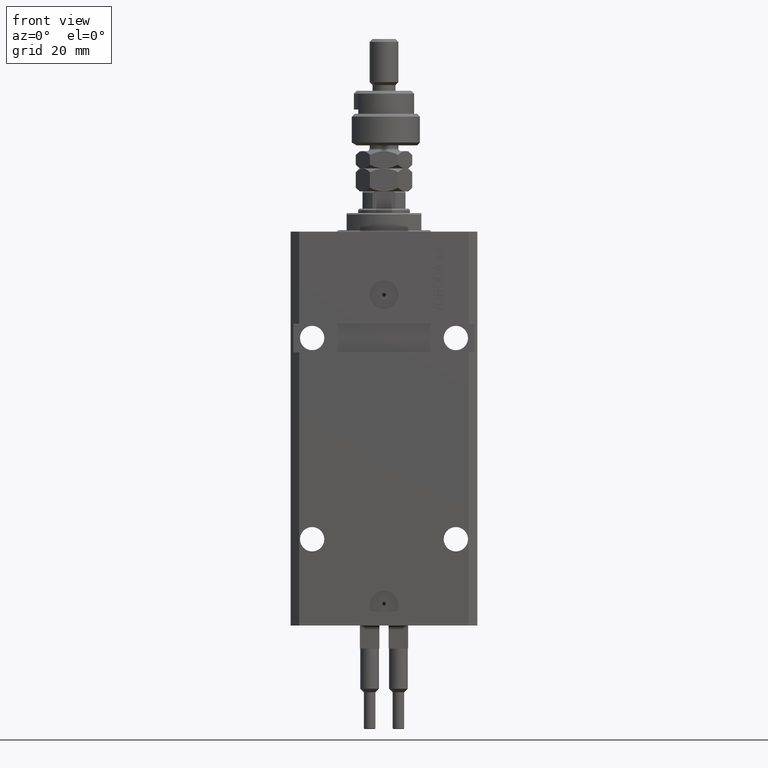
[diagram: clean part render]
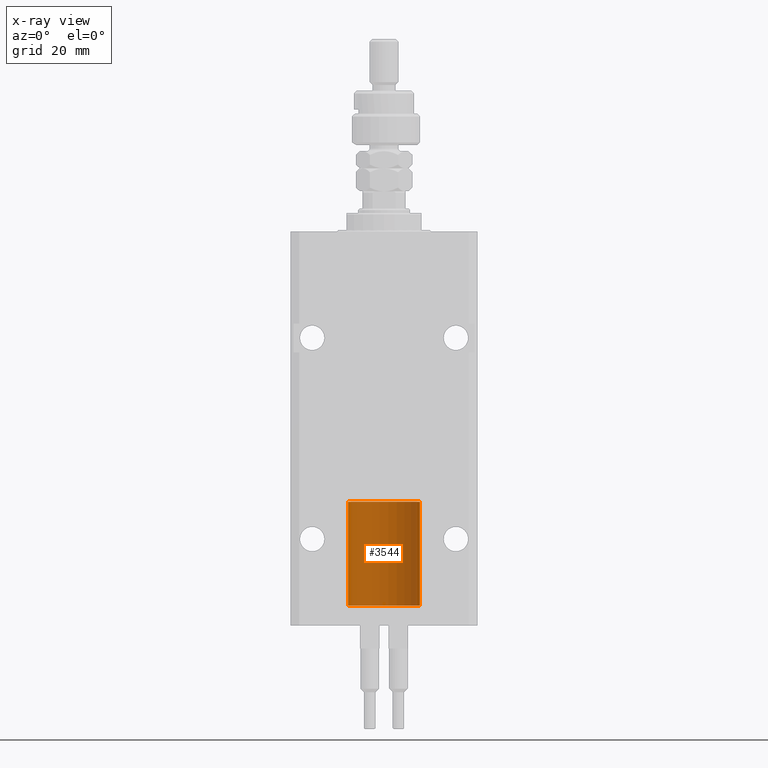
[diagram: x-ray — body ghosted, one internal face saturated and labeled with its STEP entity id]
A machine part, front view, then the same camera in x-ray: the body is ghosted and one INTERNAL B-rep face — a face not visible from any outside direction — is saturated and labeled: STEP entity #3544.
In plain terms, the highlighted cylindrical surface (edge-blend (fillet) strip) has radius 12.5 mm, axis along (-0, -0, -1).
Its self-contained STEP definition (entity closure, byte-faithful):
#2210 = DIRECTION ( 'NONE',  ( 1.000000000000000000, 0.000000000000000000, 0.000000000000000000 ) ) ;
#3544 = ADVANCED_FACE ( 'NONE', ( #48759 ), #12816, .T. ) ;
#4843 = LINE ( 'NONE', #5362, #41186 ) ;
#4847 = CARTESIAN_POINT ( 'NONE',  ( -12.50000000000000000, 0.000000000000000000, 36.10000000000000142 ) ) ;
#5076 = VERTEX_POINT ( 'NONE', #31558 ) ;
#5362 = CARTESIAN_POINT ( 'NONE',  ( 12.50000000000000000, 1.530808498934191521E-15, 36.10000000000000142 ) ) ;
#5627 = CARTESIAN_POINT ( 'NONE',  ( 0.000000000000000000, 0.000000000000000000, 36.10000000000000142 ) ) ;
#7104 = AXIS2_PLACEMENT_3D ( 'NONE', #5627, #29747, #2210 ) ;
#10031 = CARTESIAN_POINT ( 'NONE',  ( 12.50000000000000000, 1.530808498934191521E-15, 0.000000000000000000 ) ) ;
#12816 = CYLINDRICAL_SURFACE ( 'NONE', #25136, 12.50000000000000000 ) ;
#12958 = CIRCLE ( 'NONE', #19651, 12.50000000000000000 ) ;
#13467 = ORIENTED_EDGE ( 'NONE', *, *, #29627, .T. ) ;
#15784 = VERTEX_POINT ( 'NONE', #40707 ) ;
#16367 = DIRECTION ( 'NONE',  ( -0.000000000000000000, -0.000000000000000000, -1.000000000000000000 ) ) ;
#17528 = DIRECTION ( 'NONE',  ( -1.000000000000000000, 0.000000000000000000, 0.000000000000000000 ) ) ;
#17768 = EDGE_CURVE ( 'NONE', #27921, #5076, #12958, .T. ) ;
#19006 = ORIENTED_EDGE ( 'NONE', *, *, #38811, .F. ) ;
#19409 = DIRECTION ( 'NONE',  ( 1.000000000000000000, 0.000000000000000000, 0.000000000000000000 ) ) ;
#19651 = AXIS2_PLACEMENT_3D ( 'NONE', #39101, #47224, #19409 ) ;
#20916 = VECTOR ( 'NONE', #48377, 1000.000000000000000 ) ;
#21989 = DIRECTION ( 'NONE',  ( -0.000000000000000000, -0.000000000000000000, -1.000000000000000000 ) ) ;
#24414 = ORIENTED_EDGE ( 'NONE', *, *, #25795, .F. ) ;
#25136 = AXIS2_PLACEMENT_3D ( 'NONE', #46118, #21989, #17528 ) ;
#25795 = EDGE_CURVE ( 'NONE', #46548, #5076, #49423, .T. ) ;
#27921 = VERTEX_POINT ( 'NONE', #10031 ) ;
#29123 = CARTESIAN_POINT ( 'NONE',  ( -12.50000000000000000, 0.000000000000000000, 36.10000000000000142 ) ) ;
#29627 = EDGE_CURVE ( 'NONE', #15784, #27921, #4843, .T. ) ;
#29747 = DIRECTION ( 'NONE',  ( 0.000000000000000000, 0.000000000000000000, 1.000000000000000000 ) ) ;
#31558 = CARTESIAN_POINT ( 'NONE',  ( -12.50000000000000000, 0.000000000000000000, 0.000000000000000000 ) ) ;
#34182 = EDGE_LOOP ( 'NONE', ( #19006, #13467, #47215, #24414 ) ) ;
#38811 = EDGE_CURVE ( 'NONE', #15784, #46548, #39802, .T. ) ;
#39101 = CARTESIAN_POINT ( 'NONE',  ( 0.000000000000000000, 0.000000000000000000, 0.000000000000000000 ) ) ;
#39802 = CIRCLE ( 'NONE', #7104, 12.50000000000000000 ) ;
#40707 = CARTESIAN_POINT ( 'NONE',  ( 12.50000000000000000, 1.530808498934191521E-15, 36.10000000000000142 ) ) ;
#41186 = VECTOR ( 'NONE', #16367, 1000.000000000000000 ) ;
#46118 = CARTESIAN_POINT ( 'NONE',  ( 0.000000000000000000, 0.000000000000000000, 36.10000000000000142 ) ) ;
#46548 = VERTEX_POINT ( 'NONE', #29123 ) ;
#47215 = ORIENTED_EDGE ( 'NONE', *, *, #17768, .T. ) ;
#47224 = DIRECTION ( 'NONE',  ( 0.000000000000000000, 0.000000000000000000, 1.000000000000000000 ) ) ;
#48377 = DIRECTION ( 'NONE',  ( -0.000000000000000000, -0.000000000000000000, -1.000000000000000000 ) ) ;
#48759 = FACE_OUTER_BOUND ( 'NONE', #34182, .T. ) ;
#49423 = LINE ( 'NONE', #4847, #20916 ) ;